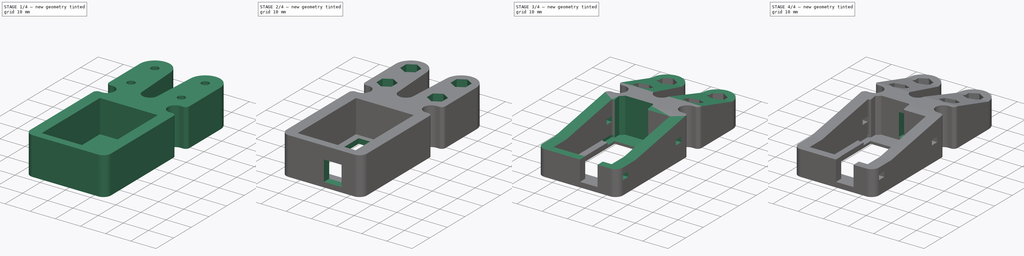
[diagram: build sequence overview — one tinted view per stage of 4, left to right]
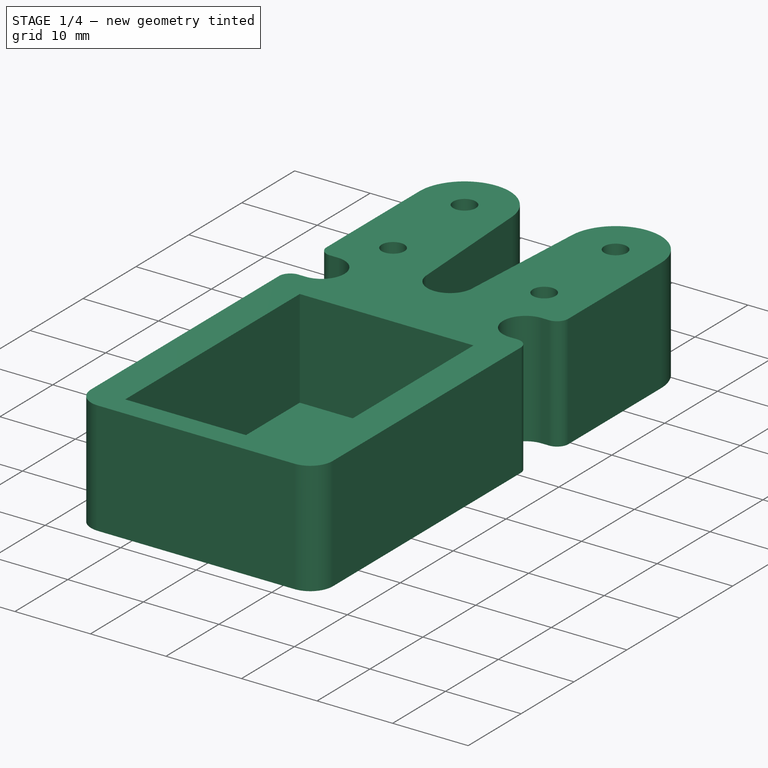
[diagram: stage 1 of 4 — iso view after this stage's code; geometry added in this stage tinted green]
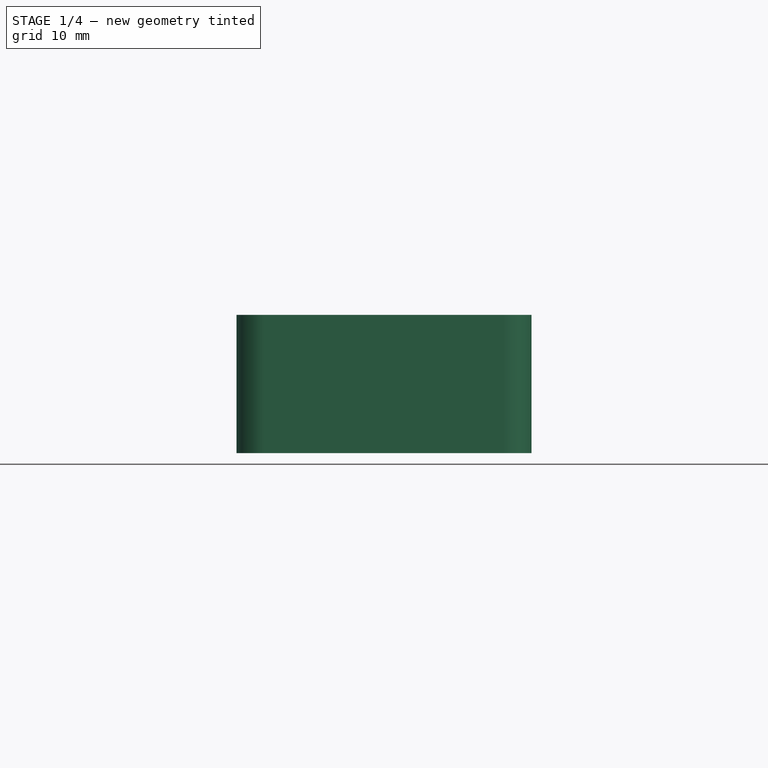
[diagram: stage 1 of 4 — front view after this stage's code; geometry added in this stage tinted green]
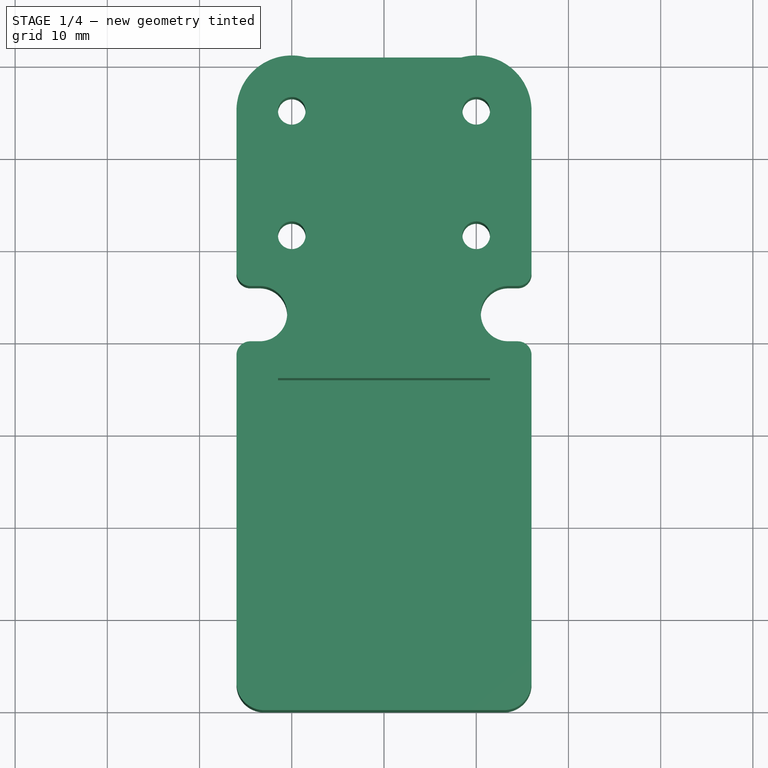
[diagram: stage 1 of 4 — top view after this stage's code; geometry added in this stage tinted green]
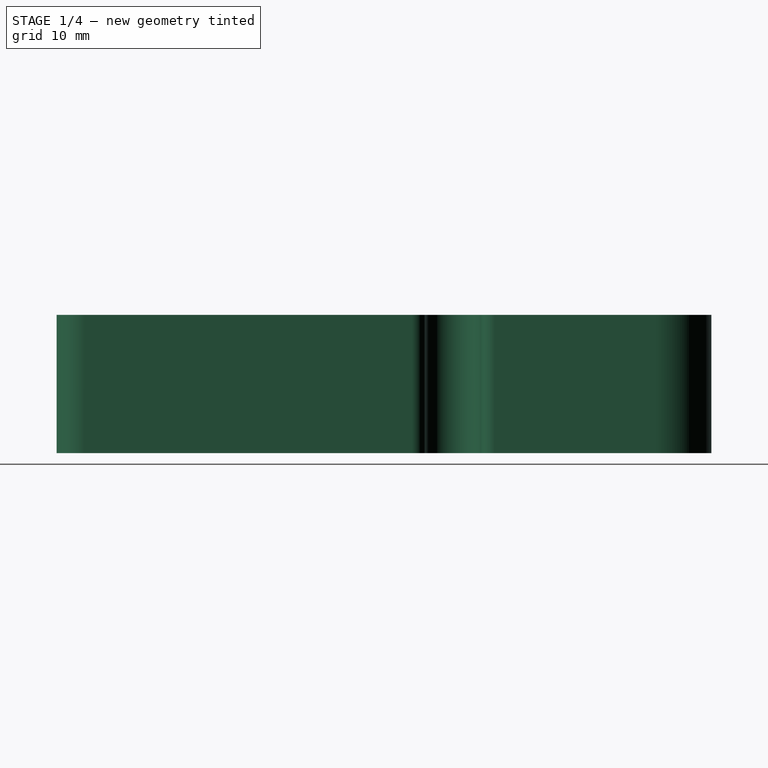
[diagram: stage 1 of 4 — right view after this stage's code; geometry added in this stage tinted green]
FCSTD DOCUMENT  (FreeCAD 0.20R29603 (Git))
Label: VideoBench
License: All rights reserved
LicenseURL: http://en.wikipedia.org/wiki/All_rights_reserved
objects: Sketcher::SketchObject×10, PartDesign::Pocket×8, PartDesign::Fillet×3, PartDesign::Pad×1, PartDesign::Hole×1, PartDesign::Body×1
note: 37 computed .brp shape members not serialized (recipe doc carries the construction recipe); baked Part::Feature solids carry a one-line shape summary decoded from their .brp

FEATURE [Sketcher::SketchObject] Sketch
  FullyConstrained = true
  MapMode = 5
  Support = -> [XY_Plane]
  sketch-geometry (20):
    g0: ArcOfCircle CenterX=14.5 CenterY=47.5 CenterZ=0 NormalX=0 NormalY=0 NormalZ=1 AngleXU=0 Radius=1.5 StartAngle=4.71239 EndAngle=6.28319
    g1: LineSegment StartX=-16 StartY=47.5 StartZ=0 EndX=-16 EndY=65 EndZ=0
    g2: LineSegment StartX=16 StartY=47.5 StartZ=0 EndX=16 EndY=65 EndZ=0
    g3: ArcOfCircle CenterX=-10 CenterY=65 CenterZ=0 NormalX=0 NormalY=0 NormalZ=1 AngleXU=0 Radius=6 StartAngle=1.5708 EndAngle=3.14159
    g4: ArcOfCircle CenterX=10 CenterY=65 CenterZ=0 NormalX=0 NormalY=0 NormalZ=1 AngleXU=0 Radius=6 StartAngle=3e-16 EndAngle=1.5708
    g5: LineSegment StartX=-10 StartY=71 StartZ=0 EndX=10 EndY=71 EndZ=0
    g6: ArcOfCircle CenterX=-13 CenterY=3 CenterZ=0 NormalX=0 NormalY=0 NormalZ=1 AngleXU=0 Radius=3 StartAngle=3.14159 EndAngle=4.71239
    g7: ArcOfCircle CenterX=13 CenterY=3 CenterZ=0 NormalX=0 NormalY=0 NormalZ=1 AngleXU=0 Radius=3 StartAngle=4.71239 EndAngle=6.28319
    g8: ArcOfCircle CenterX=14.5 CenterY=38.5 CenterZ=0 NormalX=0 NormalY=0 NormalZ=1 AngleXU=0 Radius=1.5 StartAngle=-1.8e-15 EndAngle=1.5708
    g9: LineSegment StartX=-16 StartY=3 StartZ=0 EndX=-16 EndY=38.5 EndZ=0
    g10: LineSegment StartX=16 StartY=3 StartZ=0 EndX=16 EndY=38.5 EndZ=0
    g11: LineSegment StartX=13 StartY=0 StartZ=0 EndX=-13 EndY=0 EndZ=0
    g12: ArcOfCircle CenterX=-14.5 CenterY=47.5 CenterZ=0 NormalX=0 NormalY=0 NormalZ=1 AngleXU=0 Radius=1.5 StartAngle=3.14159 EndAngle=4.71239
    g13: ArcOfCircle CenterX=-14.5 CenterY=38.5 CenterZ=0 NormalX=0 NormalY=0 NormalZ=1 AngleXU=0 Radius=1.5 StartAngle=1.5708 EndAngle=3.14159
    g14: ArcOfCircle CenterX=-13.5 CenterY=43 CenterZ=0 NormalX=0 NormalY=0 NormalZ=1 AngleXU=0 Radius=3 StartAngle=4.71239 EndAngle=7.85398
    g15: ArcOfCircle CenterX=13.5 CenterY=43 CenterZ=0 NormalX=0 NormalY=0 NormalZ=1 AngleXU=0 Radius=3 StartAngle=1.5708 EndAngle=4.71239
    g16: LineSegment StartX=14.5 StartY=46 StartZ=0 EndX=13.5 EndY=46 EndZ=0
    g17: LineSegment StartX=14.5 StartY=40 StartZ=0 EndX=13.5 EndY=40 EndZ=0
    g18: LineSegment StartX=-13.5 StartY=46 StartZ=0 EndX=-14.5 EndY=46 EndZ=0
    g19: LineSegment StartX=-13.5 StartY=40 StartZ=0 EndX=-14.5 EndY=40 EndZ=0
  constraints (50):
    c: Vertical(g1)
    c: Vertical(g2)
    c: Horizontal(g5)
    c: Tangent(g3,g1) = 1.5708
    c: Tangent(g5,g3) = 1.5708
    c: Tangent(g5,g4) = 1.5708
    c: Tangent(g4,g2) = -1.5708
    c: Tangent(g2,g0) = -1.5708
    c: Vertical(g9)
    c: Vertical(g10)
    c: Tangent(g10,g8) = -1.5708
    c: Tangent(g10,g7) = -1.5708
    c: Tangent(g9,g6) = 1.5708
    c: Tangent(g11,g6) = 1.5708
    c: Tangent(g11,g7) = 1.5708
    c: Horizontal(g11)
    c: Diameter(g0) = 3
    c: Diameter(g3) = 12
    c: Diameter(g4) = 12
    c: Diameter(g8) = 3
    c: Diameter(g6) = 6
    c: Diameter(g7) = 6
    c: DistanceX(g1,g2) = 32
    c: DistanceX(g6,g7) = 32
    c: DistanceX(g8,g0) = 0
    c: Horizontal(g18)
    c: Horizontal(g19)
    c: Horizontal(g16)
    c: Horizontal(g17)
    c: Diameter(g14) = 6
    c: Diameter(g12) = 3
    c: Diameter(g13) = 3
    c: Diameter(g15) = 6
    c: Tangent(g16,g15) = -1.5708
    c: Tangent(g17,g15) = 1.5708
    c: Tangent(g16,g0) = 1.5708
    c: Tangent(g17,g8) = -1.5708
    c: Tangent(g13,g9) = 1.5708
    c: Tangent(g19,g13) = -1.5708
    c: Tangent(g19,g14) = 1.5708
    c: Tangent(g18,g14) = -1.5708
    c: Tangent(g18,g12) = 1.5708
    c: Tangent(g12,g1) = 1.5708
    c: DistanceY(g14,g3) = 22
    c: DistanceY(g15,g4) = 22
    c: DistanceX(g14,g15) = 27
    c: DistanceY(g7,g-1) = 0
    c: DistanceX(g6,g-1) = 16
    c: DistanceX(g14,g-1) = 13.5
    c: DistanceY(g-1,g14) = 40
FEATURE [PartDesign::Pad] Pad
  Direction = (0,0,1)
  Length = 15
  Length2 = 10
  Profile = -> Sketch
  ReferenceAxis = -> Sketch [N_Axis]
  Type = 0
FEATURE [Sketcher::SketchObject] Sketch001
  FullyConstrained = true
  MapMode = 5
  Placement = pos=(0,0,15) rot=(0,0,1;0rad)
  Support = -> [Pad]
  sketch-geometry (12):
    g0: LineSegment StartX=-11.5 StartY=36 StartZ=0 EndX=11.5 EndY=36 EndZ=0
    g1: LineSegment StartX=11.5 StartY=36 StartZ=0 EndX=11.5 EndY=3 EndZ=0
    g2: LineSegment StartX=11.5 StartY=3 StartZ=0 EndX=-11.5 EndY=3 EndZ=0
    g3: LineSegment StartX=-11.5 StartY=3 StartZ=0 EndX=-11.5 EndY=36 EndZ=0
    g4: LineSegment StartX=-4.01004 StartY=65.347 StartZ=0 EndX=-2.99498 EndY=47.8265 EndZ=0
    g5: LineSegment StartX=4.01004 StartY=65.347 StartZ=0 EndX=2.99498 EndY=47.8265 EndZ=0
    g6: ArcOfCircle CenterX=-10 CenterY=65 CenterZ=0 NormalX=0 NormalY=0 NormalZ=1 AngleXU=0 Radius=6 StartAngle=0.0578711 EndAngle=1.5708
    g7: ArcOfCircle CenterX=10 CenterY=65 CenterZ=0 NormalX=0 NormalY=0 NormalZ=1 AngleXU=0 Radius=6 StartAngle=1.5708 EndAngle=3.08372
    g8: ArcOfCircle CenterX=0 CenterY=48 CenterZ=0 NormalX=0 NormalY=0 NormalZ=1 AngleXU=0 Radius=3 StartAngle=3.19946 EndAngle=6.22531
    g9: LineSegment StartX=-10 StartY=71 StartZ=0 EndX=-10 EndY=74.59 EndZ=0
    g10: LineSegment StartX=-10 StartY=74.59 StartZ=0 EndX=10 EndY=74.59 EndZ=0
    g11: LineSegment StartX=10 StartY=74.59 StartZ=0 EndX=10 EndY=71 EndZ=0
  constraints (35):
    c: Coincident(g0,g1)
    c: Coincident(g1,g2)
    c: Coincident(g2,g3)
    c: Coincident(g3,g0)
    c: Horizontal(g0)
    c: Horizontal(g2)
    c: Vertical(g1)
    c: Vertical(g3)
    c: DistanceY(g-1,g1) = 3
    c: DistanceX(g2,g-1) = 11.5
    c: DistanceX(g2,g1) = 23
    c: DistanceY(g2,g0) = 33
    c: Tangent(g6,g4) = 1.5708
    c: Tangent(g7,g5) = -1.5708
    c: Diameter(g6) = 12
    c: Diameter(g7) = 12
    c: Tangent(g8,g4) = -1.5708
    c: Tangent(g8,g5) = 1.5708
    c: Diameter(g8) = 6
    c: DistanceX(g8,g-1) = 0
    c: DistanceX(g6,g-1) = 10
    c: DistanceY(g-1,g6) = 71
    c: DistanceY(g-1,g8) = 48
    c: Coincident(g9,g6)
    c: Vertical(g9)
    c: Coincident(g10,g9)
    c: Horizontal(g10)
    c: Coincident(g11,g10)
    c: Coincident(g11,g7)
    c: Vertical(g11)
    c: DistanceY(g9,g9) = 3.59
    c: DistanceY(g-1,g7) = 71
    c: DistanceX(g-1,g7) = 10
    c: DistanceX(g-1,g7) = 10
    c: DistanceX(g6,g-1) = 10
FEATURE [PartDesign::Pocket] Pocket
  BaseFeature = -> Pad
  Direction = (0,0,-1)
  Length = 13
  Length2 = 5
  Profile = -> Sketch001
  ReferenceAxis = -> Sketch001 [N_Axis]
  Type = 0
FEATURE [Sketcher::SketchObject] Sketch002
  FullyConstrained = false
  MapMode = 5
  Placement = pos=(0,0,15) rot=(0,0,1;0rad)
  Support = -> [Pocket]
  sketch-geometry (4):
    g0: Circle CenterX=-10 CenterY=65 CenterZ=0 NormalX=0 NormalY=0 NormalZ=1 AngleXU=0 Radius=1.91403
    g1: Circle CenterX=10 CenterY=65 CenterZ=0 NormalX=0 NormalY=0 NormalZ=1 AngleXU=0 Radius=1.91403
    g2: Circle CenterX=-10 CenterY=51.5 CenterZ=0 NormalX=0 NormalY=0 NormalZ=1 AngleXU=0 Radius=3.07729
    g3: Circle CenterX=10 CenterY=51.5 CenterZ=0 NormalX=0 NormalY=0 NormalZ=1 AngleXU=0 Radius=5.62041
  constraints (8):
    c: DistanceY(g-1,g0) = 65
    c: DistanceY(g-1,g1) = 65
    c: DistanceY(g2,g0) = 13.5
    c: DistanceY(g3,g1) = 13.5
    c: DistanceX(g-1,g3) = 10
    c: DistanceX(g-1,g1) = 10
    c: DistanceX(g2,g-1) = 10
    c: DistanceX(g0,g-1) = 10
FEATURE [PartDesign::Hole] Hole
  BaseFeature = -> Pocket
  CustomThreadClearance = 0
  Depth = 25
  DepthType = 0
  Diameter = 3
  DrillForDepth = false
  DrillPoint = 1
  DrillPointAngle = 118
  HoleCutCountersinkAngle = 90
  HoleCutCustomValues = false
  HoleCutDepth = 0
  HoleCutDiameter = 6.1
  HoleCutType = 0
  ModelThread = false
  Profile = -> Sketch002
  Tapered = false
  TaperedAngle = 90
  ThreadClass = 0
  ThreadDepth = 25
  ThreadDepthType = 0
  ThreadDirection = 0
  ThreadFit = 0
  ThreadSize = 0
  ThreadType = 0
  Threaded = false
  UseCustomThreadClearance = false
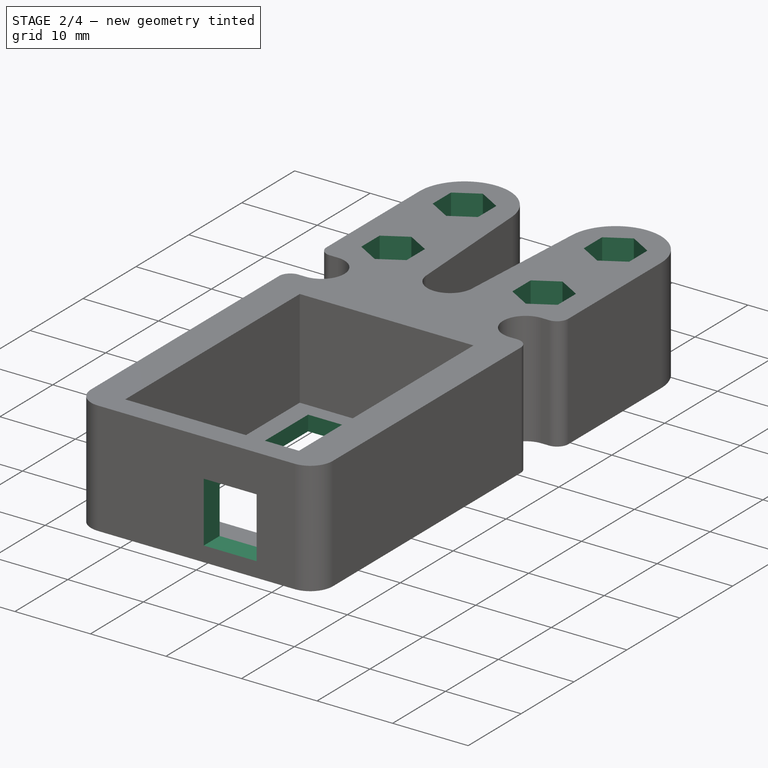
[diagram: stage 2 of 4 — iso view after this stage's code; geometry added in this stage tinted green]
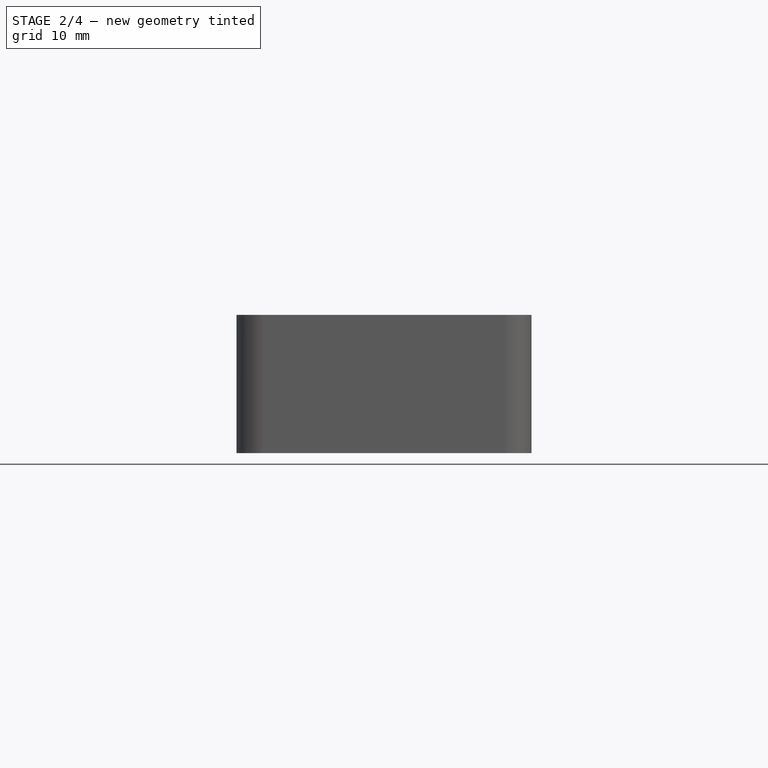
[diagram: stage 2 of 4 — front view after this stage's code; geometry added in this stage tinted green]
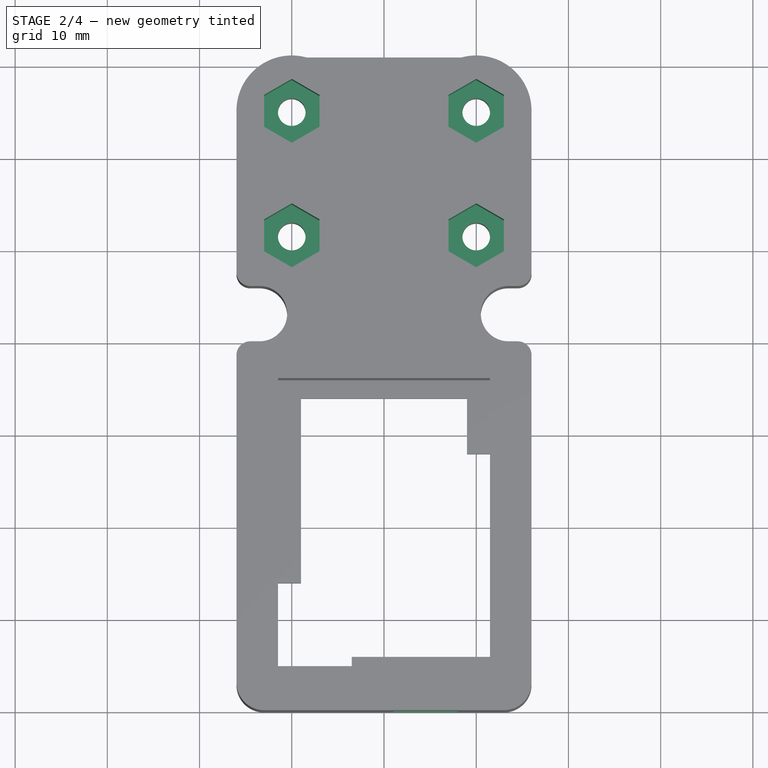
[diagram: stage 2 of 4 — top view after this stage's code; geometry added in this stage tinted green]
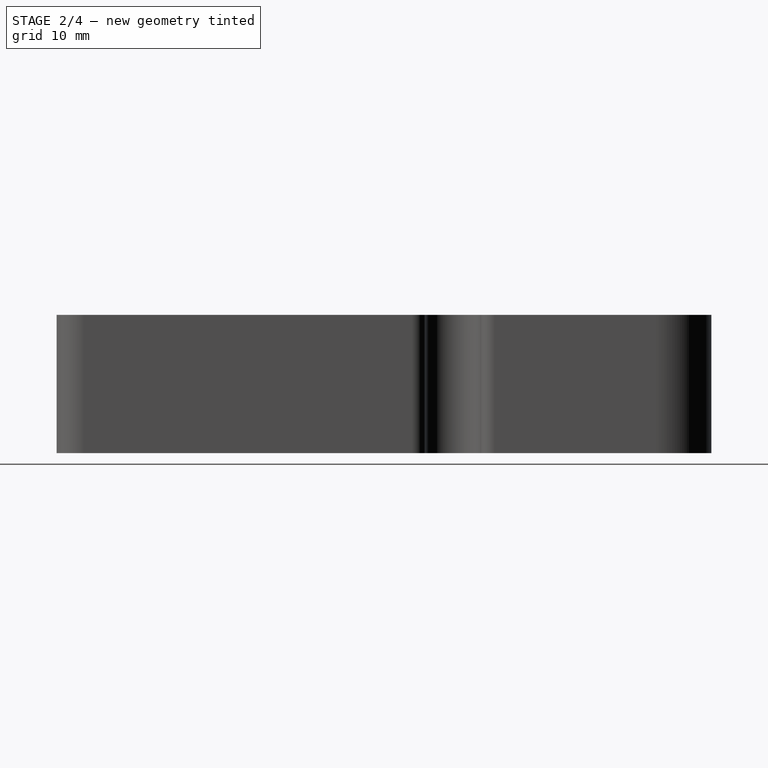
[diagram: stage 2 of 4 — right view after this stage's code; geometry added in this stage tinted green]
FEATURE [Sketcher::SketchObject] Sketch003
  FullyConstrained = true
  MapMode = 5
  Placement = pos=(0,0,15) rot=(0,0,1;0rad)
  Support = -> [Hole]
  sketch-geometry (28):
    g0: LineSegment StartX=-7 StartY=63.2679 StartZ=0 EndX=-7 EndY=66.7321 EndZ=0
    g1: LineSegment StartX=-7 StartY=66.7321 StartZ=0 EndX=-10 EndY=68.4641 EndZ=0
    g2: LineSegment StartX=-10 StartY=68.4641 StartZ=0 EndX=-13 EndY=66.7321 EndZ=0
    g3: LineSegment StartX=-13 StartY=66.7321 StartZ=0 EndX=-13 EndY=63.2679 EndZ=0
    g4: LineSegment StartX=-13 StartY=63.2679 StartZ=0 EndX=-10 EndY=61.5359 EndZ=0
    g5: LineSegment StartX=-10 StartY=61.5359 StartZ=0 EndX=-7 EndY=63.2679 EndZ=0
    g6: Circle CenterX=-10 CenterY=65 CenterZ=0 NormalX=0 NormalY=0 NormalZ=1 AngleXU=0 Radius=3.4641
    g7: LineSegment StartX=-7 StartY=49.7679 StartZ=0 EndX=-7 EndY=53.2321 EndZ=0
    g8: LineSegment StartX=-7 StartY=53.2321 StartZ=0 EndX=-10 EndY=54.9641 EndZ=0
    g9: LineSegment StartX=-10 StartY=54.9641 StartZ=0 EndX=-13 EndY=53.2321 EndZ=0
    g10: LineSegment StartX=-13 StartY=53.2321 StartZ=0 EndX=-13 EndY=49.7679 EndZ=0
    g11: LineSegment StartX=-13 StartY=49.7679 StartZ=0 EndX=-10 EndY=48.0359 EndZ=0
    g12: LineSegment StartX=-10 StartY=48.0359 StartZ=0 EndX=-7 EndY=49.7679 EndZ=0
    g13: Circle CenterX=-10 CenterY=51.5 CenterZ=0 NormalX=0 NormalY=0 NormalZ=1 AngleXU=0 Radius=3.4641
    g14: LineSegment StartX=13 StartY=49.7679 StartZ=0 EndX=13 EndY=53.2321 EndZ=0
    g15: LineSegment StartX=13 StartY=53.2321 StartZ=0 EndX=10 EndY=54.9641 EndZ=0
    g16: LineSegment StartX=10 StartY=54.9641 StartZ=0 EndX=7 EndY=53.2321 EndZ=0
    g17: LineSegment StartX=7 StartY=53.2321 StartZ=0 EndX=7 EndY=49.7679 EndZ=0
    g18: LineSegment StartX=7 StartY=49.7679 StartZ=0 EndX=10 EndY=48.0359 EndZ=0
    g19: LineSegment StartX=10 StartY=48.0359 StartZ=0 EndX=13 EndY=49.7679 EndZ=0
    g20: Circle CenterX=10 CenterY=51.5 CenterZ=0 NormalX=0 NormalY=0 NormalZ=1 AngleXU=0 Radius=3.4641
    g21: LineSegment StartX=13 StartY=63.2679 StartZ=0 EndX=13 EndY=66.7321 EndZ=0
    g22: LineSegment StartX=13 StartY=66.7321 StartZ=0 EndX=10 EndY=68.4641 EndZ=0
    g23: LineSegment StartX=10 StartY=68.4641 StartZ=0 EndX=7 EndY=66.7321 EndZ=0
    g24: LineSegment StartX=7 StartY=66.7321 StartZ=0 EndX=7 EndY=63.2679 EndZ=0
    g25: LineSegment StartX=7 StartY=63.2679 StartZ=0 EndX=10 EndY=61.5359 EndZ=0
    g26: LineSegment StartX=10 StartY=61.5359 StartZ=0 EndX=13 EndY=63.2679 EndZ=0
    g27: Circle CenterX=10 CenterY=65 CenterZ=0 NormalX=0 NormalY=0 NormalZ=1 AngleXU=0 Radius=3.4641
  constraints (68):
    c: Coincident(g0,g1)
    c: Coincident(g1,g2)
    c: Coincident(g2,g3)
    c: Coincident(g3,g4)
    c: Coincident(g4,g5)
    c: Coincident(g5,g0)
    c: Equal(g0, g1-g5) x5
    c: PointOnObject(g0,g6)
    c: PointOnObject(g1,g6)
    c: PointOnObject(g2,g6)
    c: PointOnObject(g3,g6)
    c: PointOnObject(g4,g6)
    c: PointOnObject(g5,g6)
    c: Coincident(g7,g8)
    c: Coincident(g8,g9)
    c: Coincident(g9,g10)
    c: Coincident(g10,g11)
    c: Coincident(g11,g12)
    c: Coincident(g12,g7)
    c: Equal(g7, g8-g12) x5
    c: PointOnObject(g7,g13)
    c: PointOnObject(g8,g13)
    c: PointOnObject(g9,g13)
    c: PointOnObject(g10,g13)
    c: PointOnObject(g11,g13)
    c: PointOnObject(g12,g13)
    c: Coincident(g14,g15)
    c: Coincident(g15,g16)
    c: Coincident(g16,g17)
    c: Coincident(g17,g18)
    c: Coincident(g18,g19)
    c: Coincident(g19,g14)
    c: Equal(g14, g15-g19) x5
    c: PointOnObject(g14,g20)
    c: PointOnObject(g15,g20)
    c: PointOnObject(g16,g20)
    c: PointOnObject(g17,g20)
    c: PointOnObject(g18,g20)
    c: PointOnObject(g19,g20)
    c: Coincident(g21,g22)
    c: Coincident(g22,g23)
    c: Coincident(g23,g24)
    c: Coincident(g24,g25)
    c: Coincident(g25,g26)
    c: Coincident(g26,g21)
    c: Equal(g21, g22-g26) x5
    c: PointOnObject(g21,g27)
    c: PointOnObject(g22,g27)
    c: PointOnObject(g23,g27)
    c: PointOnObject(g24,g27)
    c: PointOnObject(g25,g27)
    c: PointOnObject(g26,g27)
    c: Vertical(g24)
    c: Vertical(g17)
    c: Vertical(g10)
    c: Vertical(g3)
    c: DistanceY(g-1,g27) = 65
    c: DistanceY(g-1,g6) = 65
    c: DistanceY(g13,g6) = 13.5
    c: DistanceY(g20,g13) = 0
    c: DistanceX(g20,g27) = 0
    c: DistanceX(g6,g13) = 0
    c: DistanceX(g13,g20) = 20
    c: DistanceX(g-1,g20) = 10
    c: Distance(g6,g2) = 3
    c: Distance(g27,g23) = 3
    c: Distance(g13,g9) = 3
    c: Distance(g20,g16) = 3
FEATURE [PartDesign::Pocket] Pocket001
  BaseFeature = -> Hole
  Direction = (0,0,-1)
  Length = 8
  Length2 = 5
  Profile = -> Sketch003
  ReferenceAxis = -> Sketch003 [N_Axis]
  Type = 0
FEATURE [Sketcher::SketchObject] Sketch004  label="disp_btn_extrude"
  FullyConstrained = true
  MapMode = 5
  Placement = pos=(0,0,2) rot=(0,0,1;0rad)
  Support = -> [Pocket001]
  sketch-geometry (10):
    g0: LineSegment StartX=-11.5 StartY=5 StartZ=0 EndX=-3.5 EndY=5 EndZ=0
    g1: LineSegment StartX=11.5 StartY=6 StartZ=0 EndX=-3.5 EndY=6 EndZ=0
    g2: LineSegment StartX=-3.5 StartY=6 StartZ=0 EndX=-3.5 EndY=5 EndZ=0
    g3: LineSegment StartX=11.5 StartY=6 StartZ=0 EndX=11.5 EndY=28 EndZ=0
    g4: LineSegment StartX=9 StartY=28 StartZ=0 EndX=11.5 EndY=28 EndZ=0
    g5: LineSegment StartX=9 StartY=34 StartZ=0 EndX=9 EndY=28 EndZ=0
    g6: LineSegment StartX=-9 StartY=34 StartZ=0 EndX=9 EndY=34 EndZ=0
    g7: LineSegment StartX=-9 StartY=34 StartZ=0 EndX=-9 EndY=14 EndZ=0
    g8: LineSegment StartX=-11.5 StartY=5 StartZ=0 EndX=-11.5 EndY=14 EndZ=0
    g9: LineSegment StartX=-11.5 StartY=14 StartZ=0 EndX=-9 EndY=14 EndZ=0
  constraints (30):
    c: Horizontal(g0)
    c: DistanceY(g-1,g0) = 5
    c: DistanceX(g0,g-1) = 11.5
    c: DistanceX(g-1,g1) = 11.5
    c: DistanceY(g-1,g4) = 28
    c: DistanceX(g4,g3) = 2.5
    c: Horizontal(g1)
    c: DistanceY(g-1,g1) = 6
    c: DistanceX(g0,g0) = 8
    c: DistanceY(g-1,g6) = 34
    c: Coincident(g2,g1)
    c: Coincident(g2,g0)
    c: Vertical(g2)
    c: Coincident(g3,g1)
    c: Vertical(g3)
    c: Coincident(g4,g3)
    c: Horizontal(g4)
    c: Coincident(g5,g4)
    c: Vertical(g5)
    c: Coincident(g6,g5)
    c: Horizontal(g6)
    c: Coincident(g7,g6)
    c: Vertical(g7)
    c: Coincident(g8,g0)
    c: Vertical(g8)
    c: Coincident(g9,g8)
    c: Coincident(g9,g7)
    c: Horizontal(g9)
    c: DistanceY(g-1,g8) = 14
    c: DistanceX(g9,g9) = 2.5
FEATURE [PartDesign::Pocket] Pocket002
  BaseFeature = -> Pocket001
  Direction = (0,0,-1)
  Length = 5
  Length2 = 5
  Profile = -> Sketch004
  ReferenceAxis = -> Sketch004 [N_Axis]
  Type = 0
FEATURE [Sketcher::SketchObject] MirroredSketch
  FullyConstrained = false
  Placement = pos=(0,0,15) rot=(0,0,1;0rad)
  sketch-geometry (16):
    g0: LineSegment StartX=2.5 StartY=30 StartZ=0 EndX=-10.5 EndY=30 EndZ=0
    g1: LineSegment StartX=1.49 StartY=40 StartZ=0 EndX=-9 EndY=40 EndZ=0
    g2: ArcOfCircle CenterX=1.49 CenterY=39 CenterZ=0 NormalX=0 NormalY=0 NormalZ=1 AngleXU=0 Radius=1 StartAngle=0 EndAngle=1.5708
    g3: ArcOfCircle CenterX=2.5 CenterY=31 CenterZ=0 NormalX=0 NormalY=0 NormalZ=1 AngleXU=0 Radius=1 StartAngle=4.71239 EndAngle=6.28319
    g4: ArcOfCircle CenterX=-10.5 CenterY=31 CenterZ=0 NormalX=0 NormalY=0 NormalZ=1 AngleXU=0 Radius=1 StartAngle=3.14159 EndAngle=4.71239
    g5: LineSegment StartX=-11.5 StartY=31 StartZ=0 EndX=-11.5 EndY=35.5 EndZ=0
    g6: LineSegment StartX=3.5 StartY=31 StartZ=0 EndX=3.5 EndY=35.5 EndZ=0
    g7: ArcOfCircle CenterX=3 CenterY=35.5 CenterZ=0 NormalX=0 NormalY=0 NormalZ=1 AngleXU=0 Radius=0.5 StartAngle=0 EndAngle=1.5708
    g8: LineSegment StartX=3 StartY=36 StartZ=0 EndX=2.99 EndY=36 EndZ=0
    g9: ArcOfCircle CenterX=2.99 CenterY=36.5 CenterZ=0 NormalX=0 NormalY=0 NormalZ=1 AngleXU=0 Radius=0.5 StartAngle=3.14159 EndAngle=4.71239
    g10: ArcOfCircle CenterX=-11 CenterY=35.5 CenterZ=0 NormalX=0 NormalY=0 NormalZ=1 AngleXU=0 Radius=0.5 StartAngle=1.5708 EndAngle=3.14159
    g11: LineSegment StartX=-11 StartY=36 StartZ=0 EndX=-10.99 EndY=36 EndZ=0
    g12: ArcOfCircle CenterX=-10.99 CenterY=36.5 CenterZ=0 NormalX=0 NormalY=0 NormalZ=1 AngleXU=0 Radius=0.5 StartAngle=4.71239 EndAngle=6.28319
    g13: LineSegment StartX=2.49 StartY=36.5 StartZ=0 EndX=2.49 EndY=39 EndZ=0
    g14: LineSegment StartX=-10.49 StartY=36.5 StartZ=0 EndX=-10.49 EndY=38.6757 EndZ=0
    g15: ArcOfCircle CenterX=-13 CenterY=43 CenterZ=0 NormalX=0 NormalY=0 NormalZ=1 AngleXU=0 Radius=5 StartAngle=5.2383 EndAngle=5.63968
  constraints (32):
    c: Horizontal(g0)
    c: Horizontal(g1)
    c: Diameter(g2) = 2
    c: Diameter(g3) = 2
    c: Diameter(g4) = 2
    c: Tangent(g2,g1) = -1.5708
    c: Tangent(g3,g0) = 1.5708
    c: Tangent(g4,g0) = 1.5708
    c: Vertical(g5)
    c: Vertical(g6)
    c: Tangent(g7,g6) = -1.5708
    c: Diameter(g7) = 1
    c: Horizontal(g8)
    c: Tangent(g8,g7) = -1.5708
    c: Tangent(g9,g8) = 1.5708
    c: Diameter(g9) = 1
    c: Tangent(g10,g5) = 1.5708
    c: Horizontal(g11)
    c: Tangent(g11,g10) = 1.5708
    c: Tangent(g12,g11) = -1.5708
    c: Diameter(g10) = 1
    c: Diameter(g12) = 1
    c: Vertical(g13)
    c: Tangent(g13,g9) = 1.5708
    c: Tangent(g13,g2) = -1.5708
    c: Vertical(g14)
    c: Tangent(g14,g12) = -1.5708
    c: Tangent(g5,g4) = 1.5708
    c: Tangent(g6,g3) = -1.5708
    c: Coincident(g15,g14)
    c: Coincident(g15,g1)
    c: Diameter(g15) = 10
FEATURE [Sketcher::SketchObject] Sketch006  label="antenna_extrude"
  FullyConstrained = true
  MapMode = 5
  Placement = pos=(0,0,0) rot=(1,0,0;1.5708rad)
  sketch-geometry (4):
    g0: LineSegment StartX=1 StartY=10 StartZ=0 EndX=1 EndY=2 EndZ=0
    g1: LineSegment StartX=8 StartY=10 StartZ=0 EndX=8 EndY=2 EndZ=0
    g2: LineSegment StartX=1 StartY=10 StartZ=0 EndX=8 EndY=10 EndZ=0
    g3: LineSegment StartX=1 StartY=2 StartZ=0 EndX=8 EndY=2 EndZ=0
  constraints (12):
    c: Vertical(g0)
    c: Vertical(g1)
    c: Coincident(g2,g0)
    c: Coincident(g2,g1)
    c: Horizontal(g2)
    c: DistanceY(g-1,g0) = 10
    c: DistanceX(g-1,g0) = 1
    c: Coincident(g3,g0)
    c: Coincident(g3,g1)
    c: Horizontal(g3)
    c: DistanceY(g-1,g0) = 2
    c: DistanceX(g3,g3) = 7
FEATURE [PartDesign::Pocket] Pocket004
  BaseFeature = -> Pocket002
  Direction = (0,1,-2e-16)
  Length = 5
  Length2 = 5
  Profile = -> Sketch006
  ReferenceAxis = -> Sketch006 [N_Axis]
  Type = 0
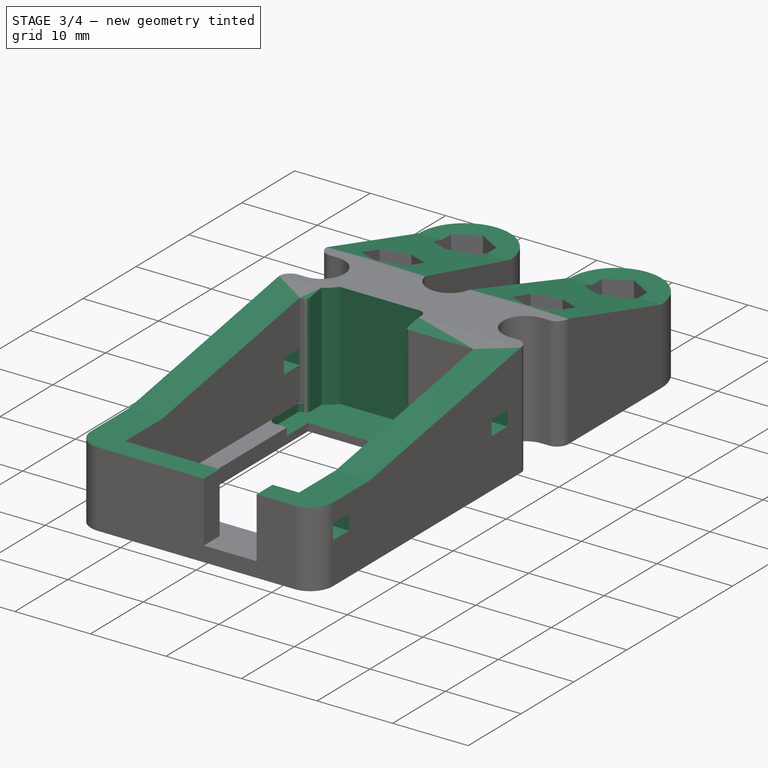
[diagram: stage 3 of 4 — iso view after this stage's code; geometry added in this stage tinted green]
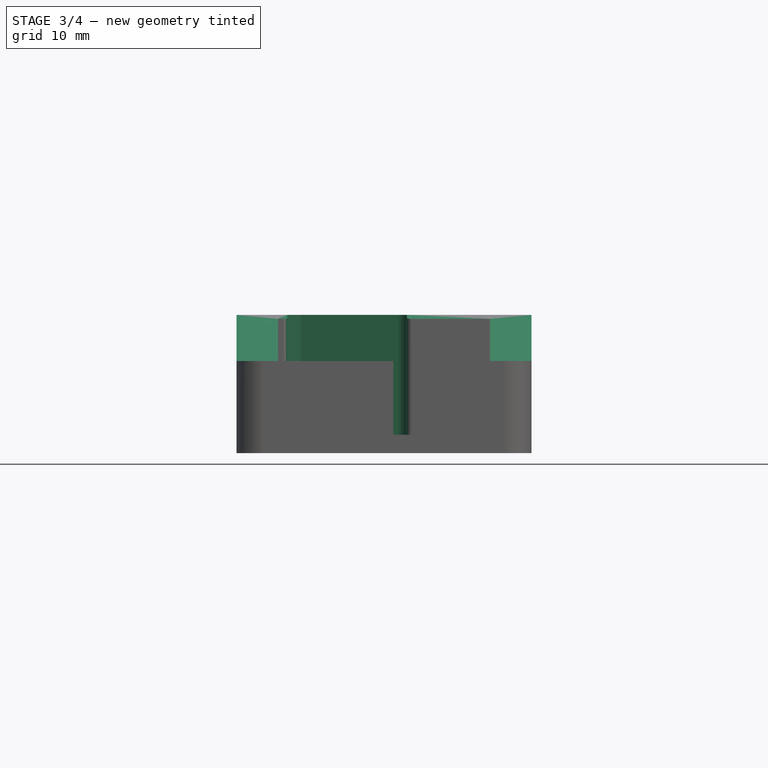
[diagram: stage 3 of 4 — front view after this stage's code; geometry added in this stage tinted green]
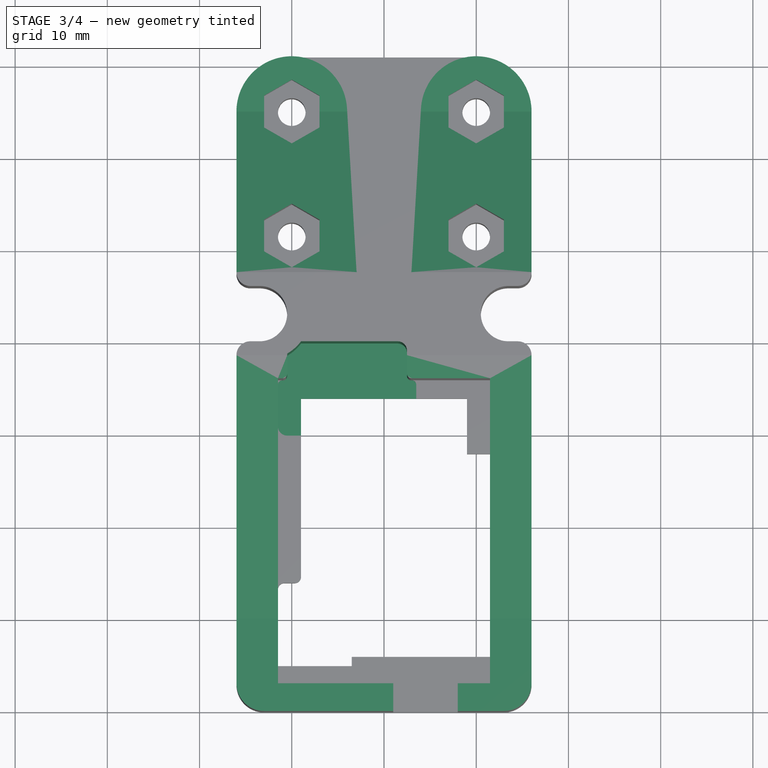
[diagram: stage 3 of 4 — top view after this stage's code; geometry added in this stage tinted green]
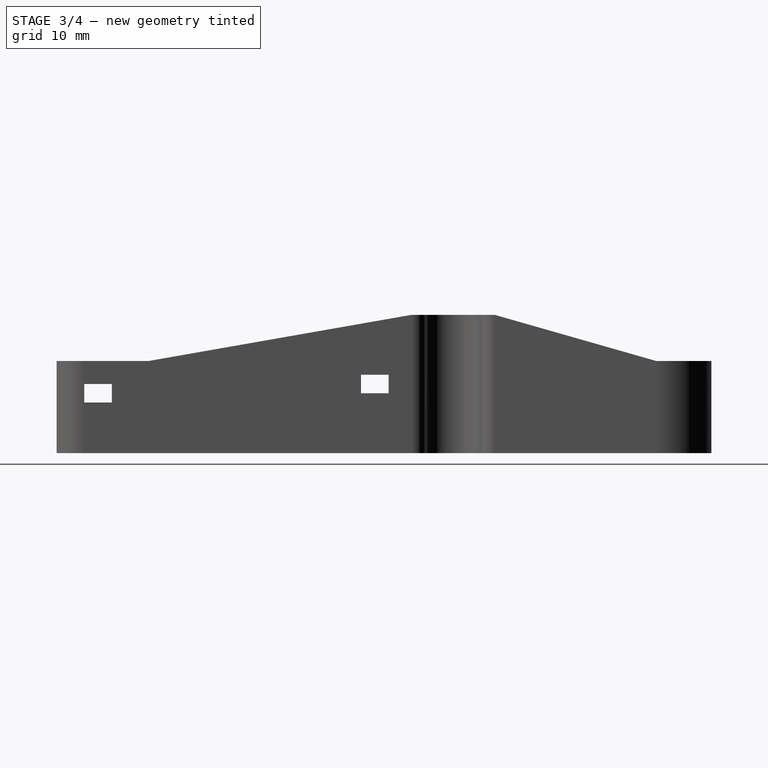
[diagram: stage 3 of 4 — right view after this stage's code; geometry added in this stage tinted green]
FEATURE [Sketcher::SketchObject] Sketch007  label="valera_extrude"
  FullyConstrained = true
  MapMode = 5
  Placement = pos=(16,0,0) rot=(0.57735,0.57735,0.57735;2.0944rad)
  Support = -> [Pocket004]
  sketch-geometry (8):
    g0: LineSegment StartX=3 StartY=7.5 StartZ=0 EndX=6 EndY=7.5 EndZ=0
    g1: LineSegment StartX=6 StartY=7.5 StartZ=0 EndX=6 EndY=5.5 EndZ=0
    g2: LineSegment StartX=6 StartY=5.5 StartZ=0 EndX=3 EndY=5.5 EndZ=0
    g3: LineSegment StartX=3 StartY=5.5 StartZ=0 EndX=3 EndY=7.5 EndZ=0
    g4: LineSegment StartX=33 StartY=8.5 StartZ=0 EndX=36 EndY=8.5 EndZ=0
    g5: LineSegment StartX=36 StartY=8.5 StartZ=0 EndX=36 EndY=6.5 EndZ=0
    g6: LineSegment StartX=36 StartY=6.5 StartZ=0 EndX=33 EndY=6.5 EndZ=0
    g7: LineSegment StartX=33 StartY=6.5 StartZ=0 EndX=33 EndY=8.5 EndZ=0
  constraints (24):
    c: Coincident(g0,g1)
    c: Coincident(g1,g2)
    c: Coincident(g2,g3)
    c: Coincident(g3,g0)
    c: Horizontal(g0)
    c: Horizontal(g2)
    c: Vertical(g1)
    c: Vertical(g3)
    c: Coincident(g4,g5)
    c: Coincident(g5,g6)
    c: Coincident(g6,g7)
    c: Coincident(g7,g4)
    c: Horizontal(g4)
    c: Horizontal(g6)
    c: Vertical(g5)
    c: Vertical(g7)
    c: DistanceY(g1,g1) = 2
    c: DistanceY(g5,g5) = 2
    c: DistanceY(g-1,g1) = 5.5
    c: DistanceY(g-1,g5) = 6.5
    c: DistanceX(g-1,g2) = 3
    c: DistanceX(g-1,g5) = 36
    c: DistanceX(g6,g6) = 3
    c: DistanceX(g2,g2) = 3
FEATURE [PartDesign::Pocket] Pocket005
  BaseFeature = -> Pocket004
  Direction = (-1,0,0)
  Length = 50
  Length2 = 5
  Profile = -> Sketch007
  ReferenceAxis = -> Sketch007 [N_Axis]
  Type = 0
FEATURE [Sketcher::SketchObject] Sketch008
  FullyConstrained = true
  MapMode = 5
  Placement = pos=(16,0,0) rot=(0.57735,0.57735,0.57735;2.0944rad)
  Support = -> [Pocket005]
  sketch-geometry (8):
    g0: LineSegment StartX=0 StartY=10 StartZ=0 EndX=10 EndY=10 EndZ=0
    g1: LineSegment StartX=10 StartY=10 StartZ=0 EndX=38.5 EndY=15 EndZ=0
    g2: LineSegment StartX=38.5 StartY=15 StartZ=0 EndX=47.5 EndY=15 EndZ=0
    g3: LineSegment StartX=47.5 StartY=15 StartZ=0 EndX=65 EndY=10 EndZ=0
    g4: LineSegment StartX=65 StartY=10 StartZ=0 EndX=71 EndY=10 EndZ=0
    g5: LineSegment StartX=71 StartY=10 StartZ=0 EndX=71 EndY=16.83 EndZ=0
    g6: LineSegment StartX=71 StartY=16.83 StartZ=0 EndX=0 EndY=16.83 EndZ=0
    g7: LineSegment StartX=0 StartY=16.83 StartZ=0 EndX=0 EndY=10 EndZ=0
  constraints (24):
    c: PointOnObject(g0,g-2)
    c: Horizontal(g0)
    c: Coincident(g1,g0)
    c: Coincident(g2,g1)
    c: Horizontal(g2)
    c: Coincident(g3,g2)
    c: Coincident(g4,g3)
    c: Horizontal(g4)
    c: Coincident(g5,g4)
    c: Vertical(g5)
    c: PointOnObject(g6,g-2)
    c: Horizontal(g6)
    c: Coincident(g7,g6)
    c: Coincident(g7,g0)
    c: DistanceY(g-1,g0) = 10
    c: DistanceY(g-1,g4) = 10
    c: DistanceY(g-1,g1) = 15
    c: DistanceY(g-1,g6) = 16.83
    c: DistanceX(g0,g0) = 10
    c: DistanceX(g4,g4) = 6
    c: DistanceX(g-1,g4) = 71
    c: DistanceX(g0,g1) = 28.5
    c: DistanceX(g1,g2) = 9
    c: Coincident(g5,g6)
FEATURE [PartDesign::Pocket] Pocket006
  BaseFeature = -> Pocket005
  Direction = (-1,0,0)
  Length = 50
  Length2 = 5
  Profile = -> Sketch008
  ReferenceAxis = -> Sketch008 [N_Axis]
  Type = 0
FEATURE [PartDesign::Fillet] Fillet
  Base = -> Pocket006 [Edge135,Edge137]
  BaseFeature = -> Pocket006
  Radius = 0.7
  SupportTransform = false
  UseAllEdges = false
FEATURE [PartDesign::Pocket] Pocket008
  BaseFeature = -> Fillet
  Direction = (0,0,-1)
  Length = 14
  Length2 = 5
  Profile = -> MirroredSketch
  ReferenceAxis = -> MirroredSketch [N_Axis]
  Type = 0
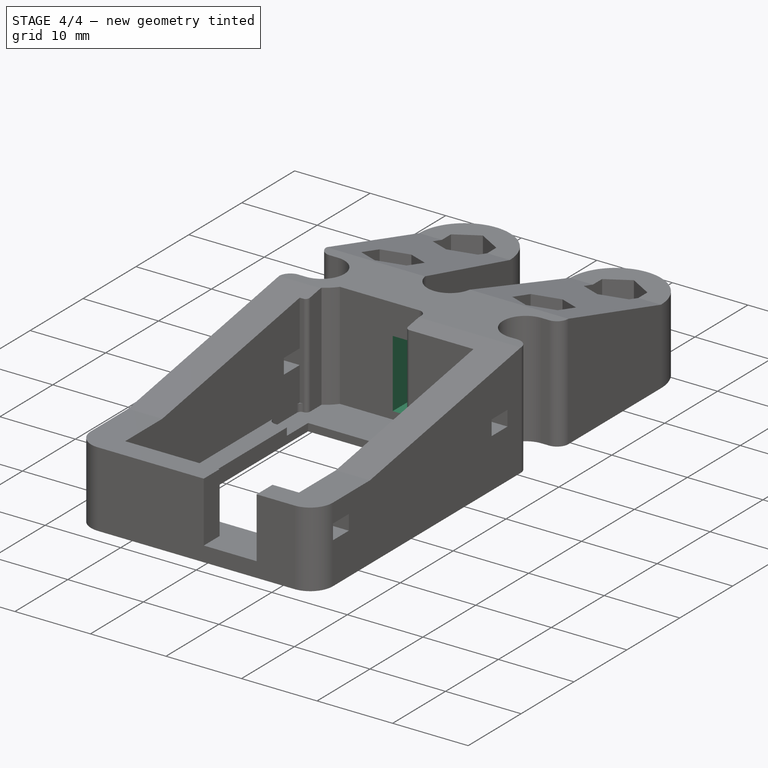
[diagram: stage 4 of 4 — iso view after this stage's code; geometry added in this stage tinted green]
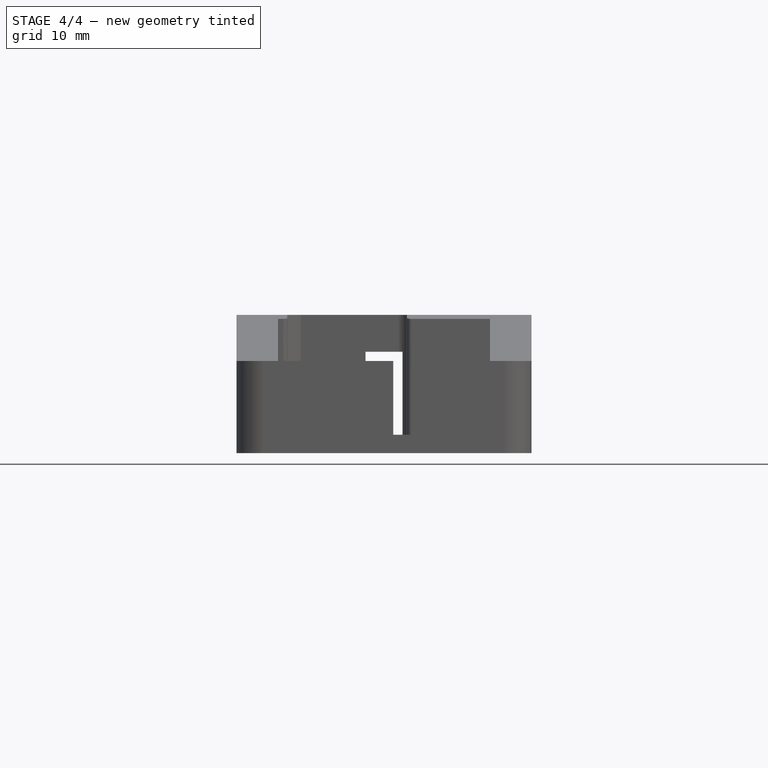
[diagram: stage 4 of 4 — front view after this stage's code; geometry added in this stage tinted green]
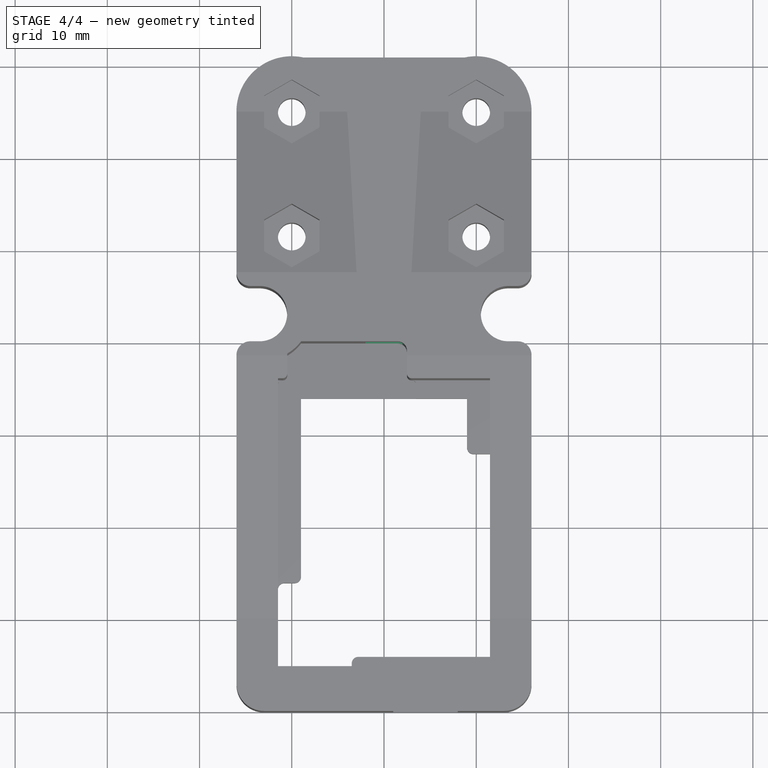
[diagram: stage 4 of 4 — top view after this stage's code; geometry added in this stage tinted green]
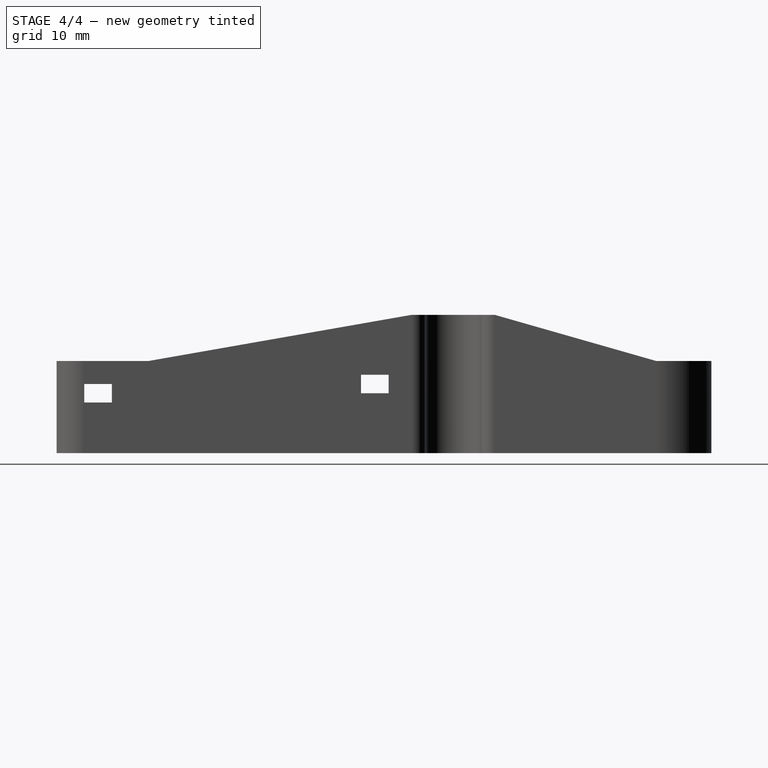
[diagram: stage 4 of 4 — right view after this stage's code; geometry added in this stage tinted green]
FEATURE [Sketcher::SketchObject] Sketch009
  FullyConstrained = true
  MapMode = 5
  Placement = pos=(0,40,0) rot=(1,0,0;1.5708rad)
  Support = -> [Pocket008]
  sketch-geometry (4):
    g0: LineSegment StartX=-2 StartY=11 StartZ=0 EndX=2 EndY=11 EndZ=0
    g1: LineSegment StartX=2 StartY=11 StartZ=0 EndX=2 EndY=2 EndZ=0
    g2: LineSegment StartX=2 StartY=2 StartZ=0 EndX=-2 EndY=2 EndZ=0
    g3: LineSegment StartX=-2 StartY=2 StartZ=0 EndX=-2 EndY=11 EndZ=0
  constraints (12):
    c: Coincident(g0,g1)
    c: Coincident(g1,g2)
    c: Coincident(g2,g3)
    c: Coincident(g3,g0)
    c: Horizontal(g0)
    c: Horizontal(g2)
    c: Vertical(g1)
    c: Vertical(g3)
    c: DistanceY(g3,g3) = 9
    c: DistanceX(g2,g2) = 4
    c: Distance(g1,g-2) = 2
    c: DistanceY(g-1,g2) = 2
FEATURE [PartDesign::Pocket] Pocket009
  BaseFeature = -> Pocket008
  Direction = (0,1,-2e-16)
  Length = 13
  Length2 = 5
  Midplane = true
  Profile = -> Sketch009
  ReferenceAxis = -> Sketch009 [N_Axis]
  Type = 0
FEATURE [PartDesign::Fillet] Fillet001
  Base = -> Pocket009 [Edge47]
  BaseFeature = -> Pocket009
  Radius = 0.7
  SupportTransform = false
  UseAllEdges = false
FEATURE [PartDesign::Fillet] Fillet002
  Base = -> Fillet001 [Edge58]
  BaseFeature = -> Fillet001
  Radius = 0.7
  SupportTransform = false
  UseAllEdges = false
FEATURE [PartDesign::Body] Body
  Group = -> [Sketch,Pad,Sketch001,Pocket,Sketch002,Hole,Sketch003,Pocket001,Sketch004,Pocket002,Sketch006,Pocket004,Sketch007,Pocket005,Sketch008,Pocket006,Fillet,MirroredSketch,Pocket008,Sketch009,Pocket009,Fillet001,Fillet002]
  Origin = -> Origin
  Tip = -> Fillet002
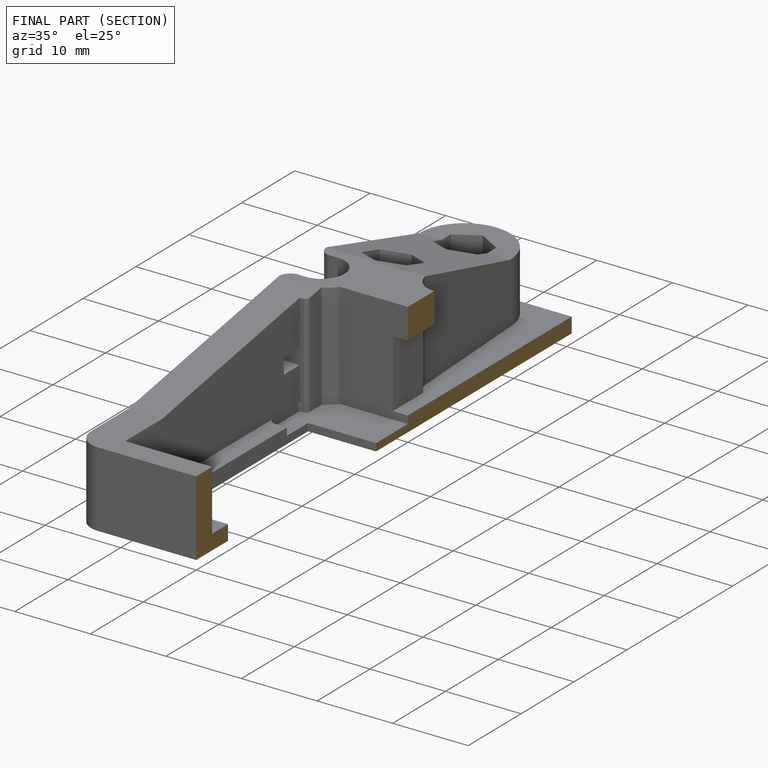
[diagram: finished part — half-section view (interior)]
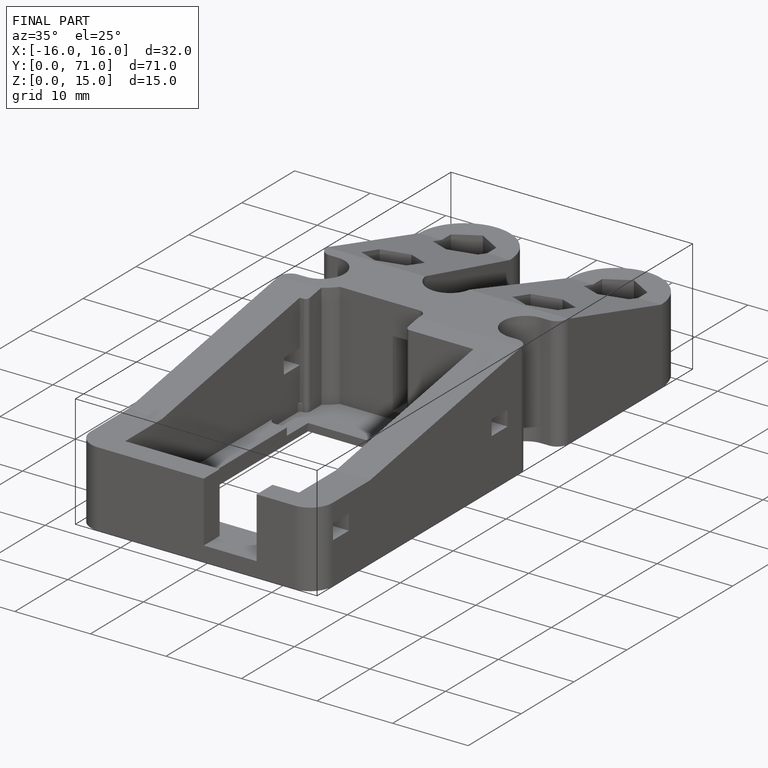
[diagram: finished part — iso view with bounding-box wireframe]
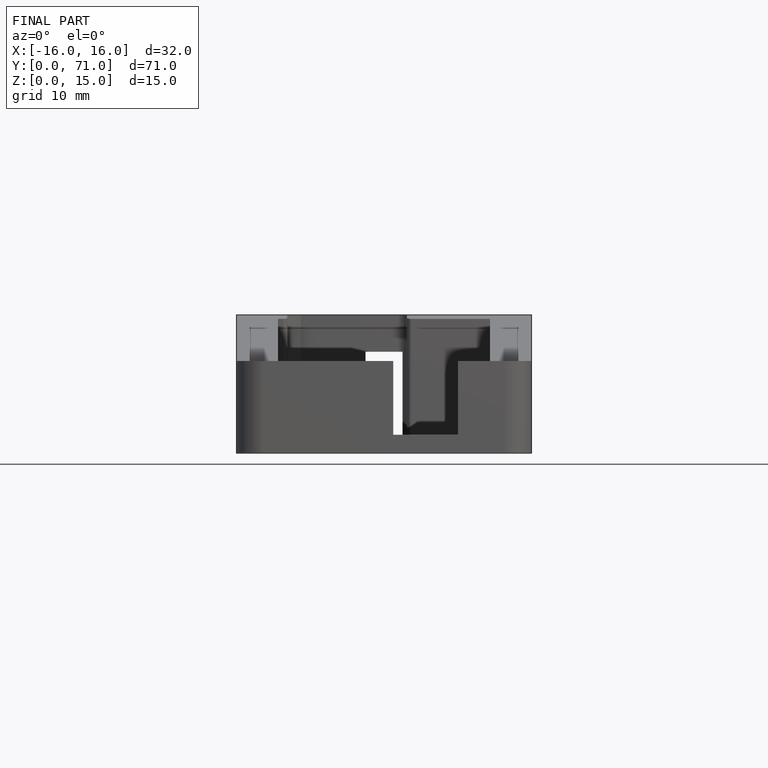
[diagram: finished part — front view with bounding-box wireframe]
